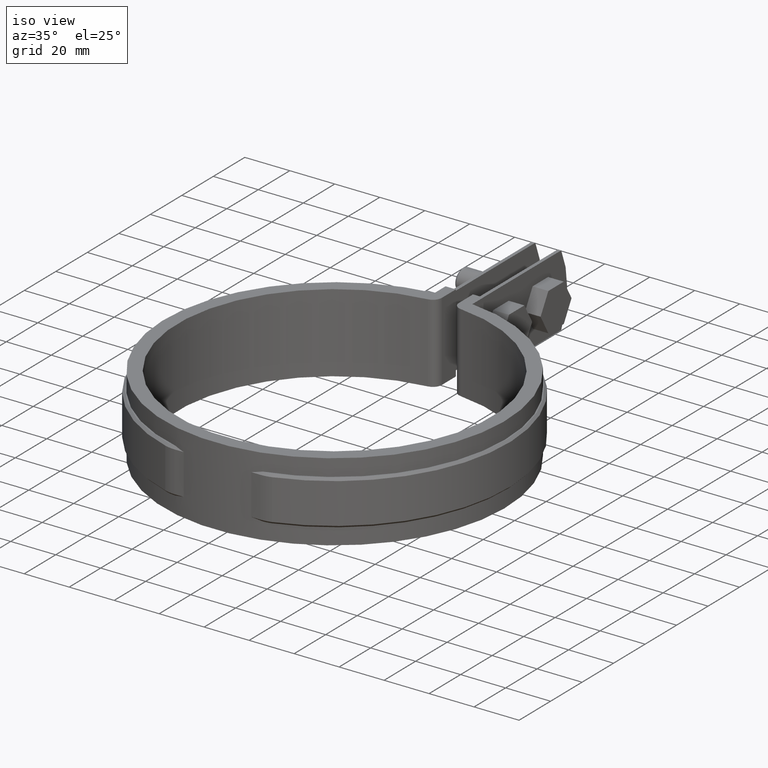
[diagram: clean part render]
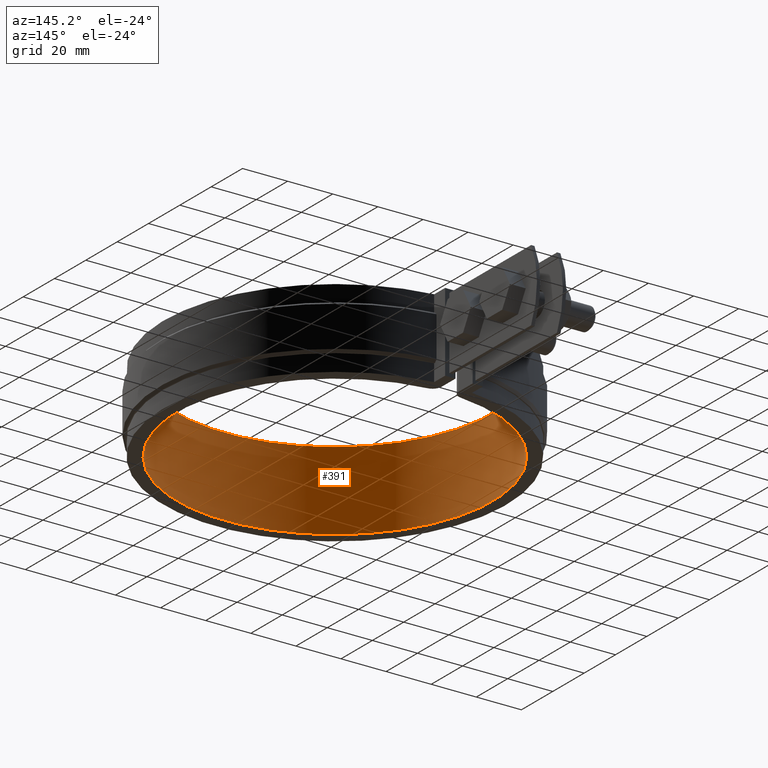
[diagram: tour spotlight — one face highlighted and labeled with its STEP entity id]
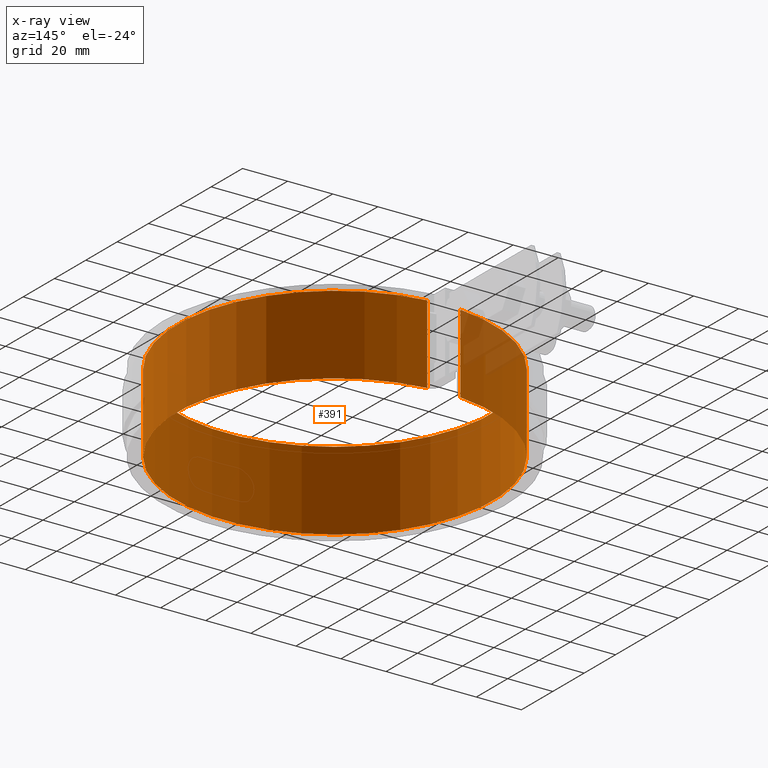
[diagram: x-ray of the same camera — body ghosted, this tour face saturated]
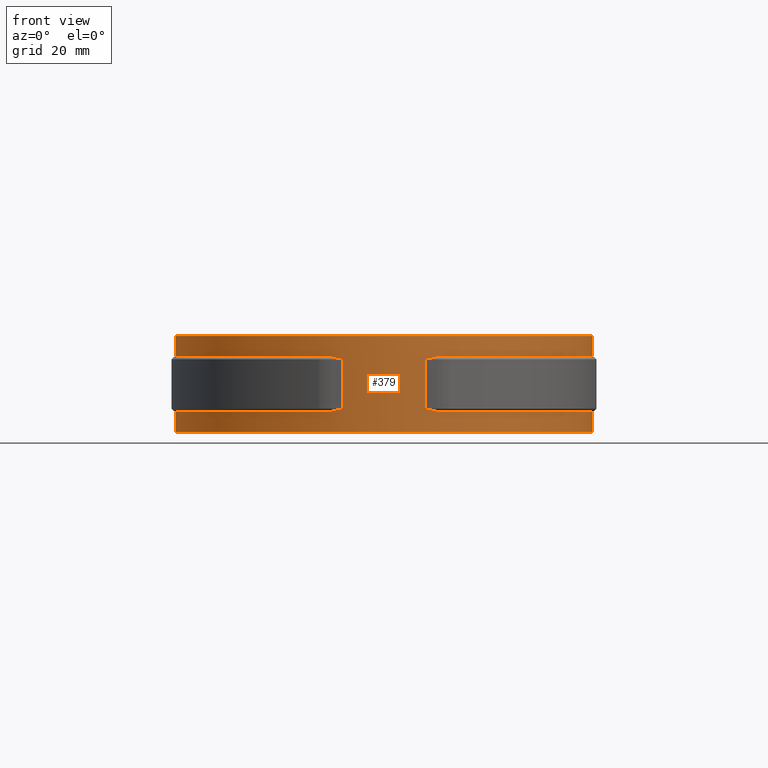
[diagram: tour spotlight — one face highlighted and labeled with its STEP entity id]
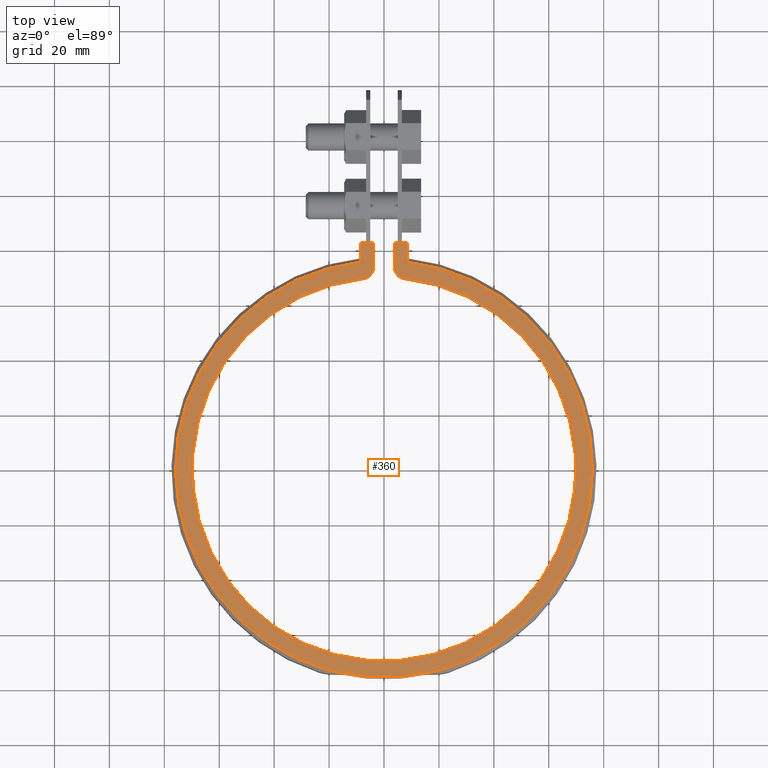
[diagram: tour spotlight — one face highlighted and labeled with its STEP entity id]
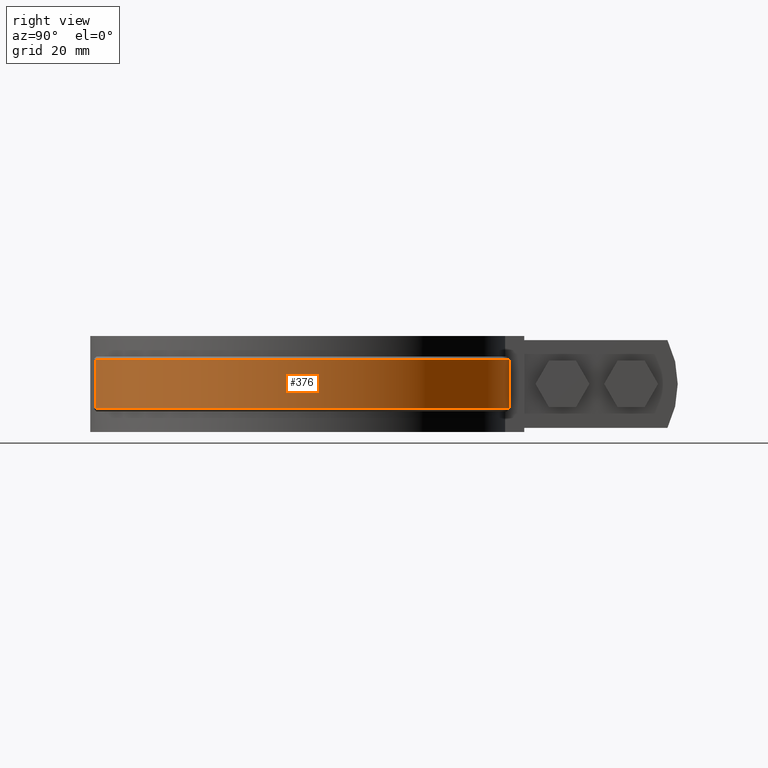
[diagram: tour spotlight — one face highlighted and labeled with its STEP entity id]
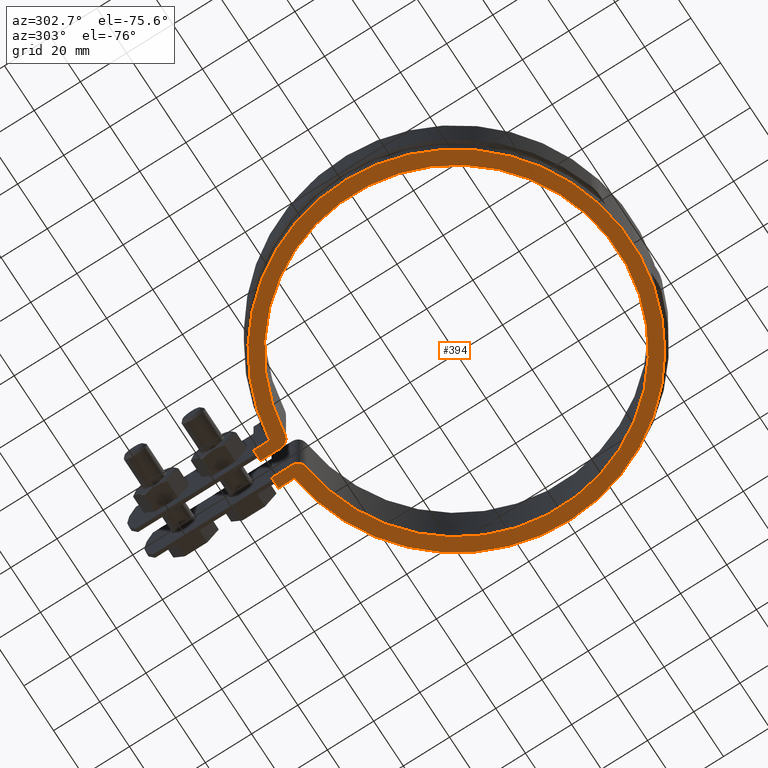
[diagram: tour spotlight — one face highlighted and labeled with its STEP entity id]
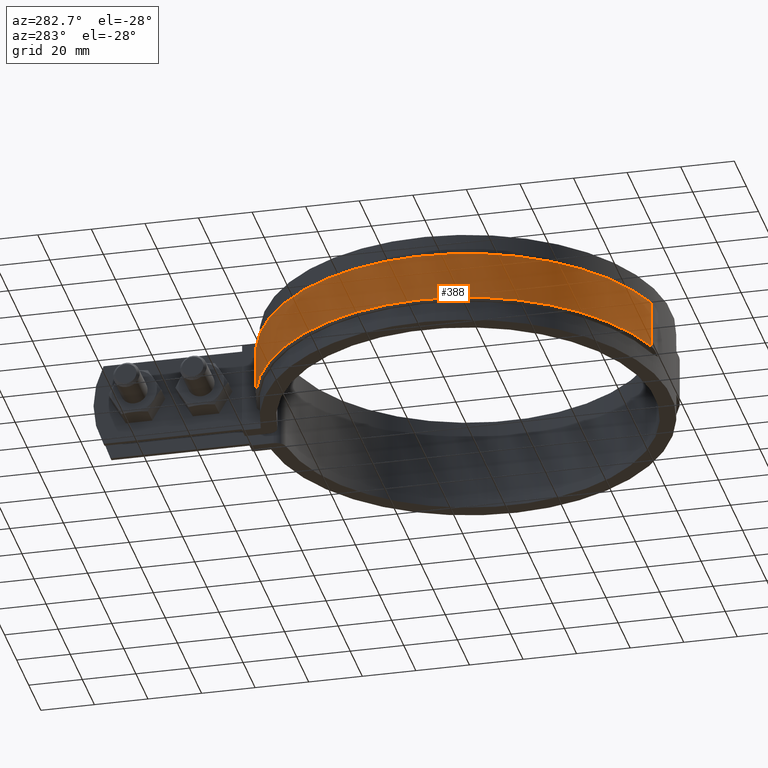
[diagram: tour spotlight — one face highlighted and labeled with its STEP entity id]
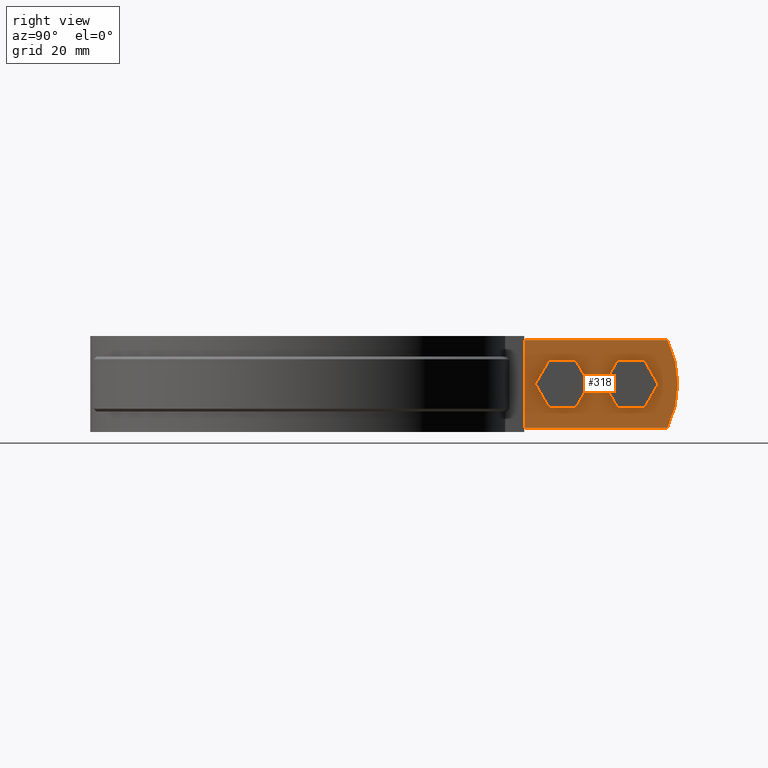
[diagram: tour spotlight — one face highlighted and labeled with its STEP entity id]
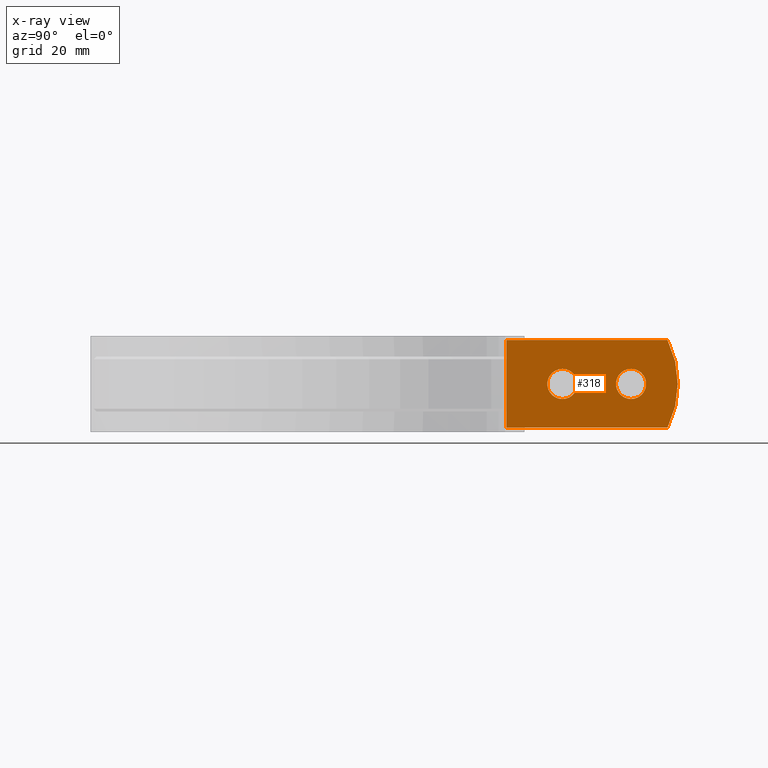
[diagram: x-ray of the same camera — body ghosted, this tour face saturated]
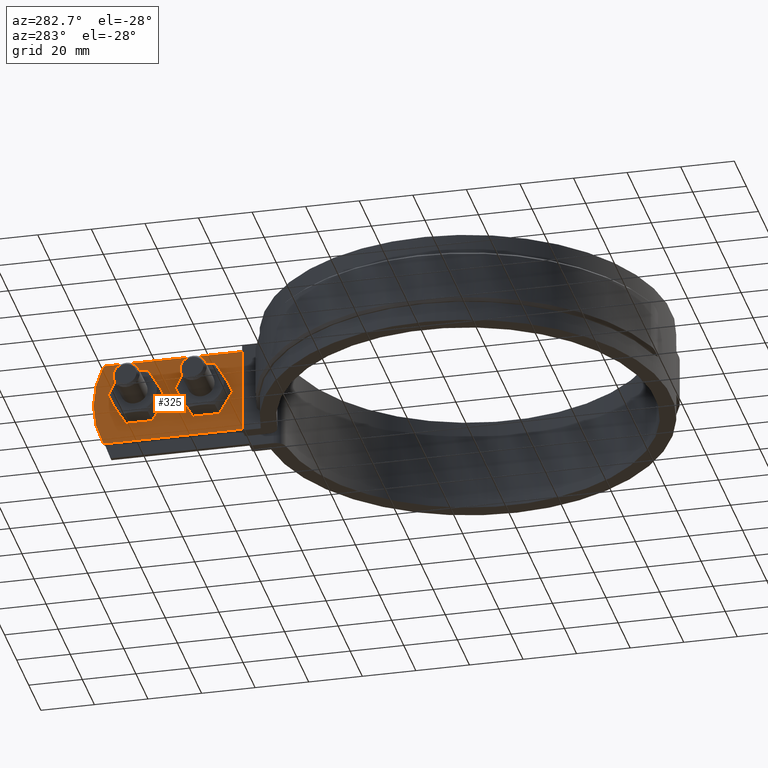
[diagram: tour spotlight — one face highlighted and labeled with its STEP entity id]
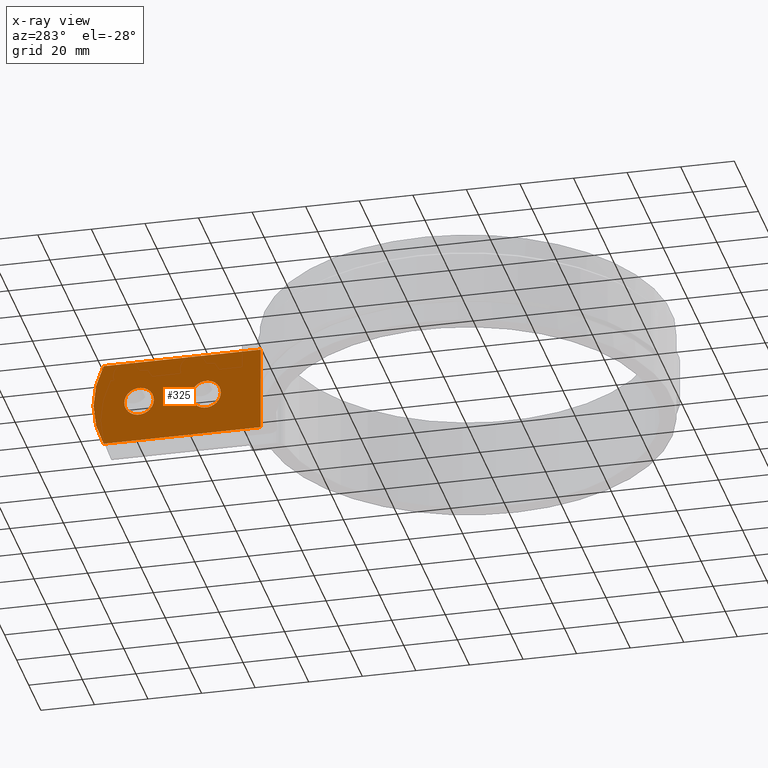
[diagram: x-ray of the same camera — body ghosted, this tour face saturated]
A machine part: a face-by-face anatomy tour. The part has 146 B-rep faces; the first image is the clean iso view, then the 8 largest visible faces are spotlighted one at a time (largest first), each with its STEP entity span.

Face 1 — auxiliary view, entity #391. An x-ray twin of the same camera follows (body ghosted, this face saturated) — the face is partly hidden behind the body. In plain terms, the highlighted cylindrical surface (partial cylindrical patch) has radius 69.9 mm, axis along (0, 0, 1).
Definition (entity closure, byte-faithful):
#391 = ADVANCED_FACE( '', ( #634 ), #635, .F. );
#634 = FACE_OUTER_BOUND( '', #1712, .T. );
#635 = CYLINDRICAL_SURFACE( '', #1713, 69.9000000000000 );
#1712 = EDGE_LOOP( '', ( #4073, #4074, #4075, #4076 ) );
#1713 = AXIS2_PLACEMENT_3D( '', #4077, #4078, #4079 );
#4073 = ORIENTED_EDGE( '', *, *, #4791, .T. );
#4074 = ORIENTED_EDGE( '', *, *, #4805, .F. );
#4075 = ORIENTED_EDGE( '', *, *, #4873, .F. );
#4076 = ORIENTED_EDGE( '', *, *, #4874, .T. );
#4077 = CARTESIAN_POINT( '', ( 1.73472347597681E-015, 2.77555756156289E-014, -32.0000000000000 ) );
#4078 = DIRECTION( '', ( 0.000000000000000, 0.000000000000000, 1.00000000000000 ) );
#4079 = DIRECTION( '', ( -0.105548037889040, -0.994414205297658, 0.000000000000000 ) );
#4791 = EDGE_CURVE( '', #5337, #5335, #5338, .T. );
#4805 = EDGE_CURVE( '', #5361, #5335, #5363, .T. );
#4873 = EDGE_CURVE( '', #5462, #5361, #5463, .T. );
#4874 = EDGE_CURVE( '', #5462, #5337, #5464, .T. );
#5335 = VERTEX_POINT( '', #7864 );
#5337 = VERTEX_POINT( '', #7866 );
#5338 = LINE( '', #7867, #7868 );
#5361 = VERTEX_POINT( '', #7904 );
#5363 = CIRCLE( '', #7906, 69.9000000000000 );
#5462 = VERTEX_POINT( '', #8061 );
#5463 = LINE( '', #8062, #8063 );
#5464 = CIRCLE( '', #8064, 69.9000000000000 );
#7864 = CARTESIAN_POINT( '', ( -7.37780784844384, 69.5095529503063, 1.50000000000000 ) );
#7866 = CARTESIAN_POINT( '', ( -7.37780784844384, 69.5095529503063, -33.5000000000000 ) );
#7867 = CARTESIAN_POINT( '', ( -7.37780784844384, 69.5095529503063, -32.0000000000000 ) );
#7868 = VECTOR( '', #8689, 1000.00000000000 );
#7904 = CARTESIAN_POINT( '', ( 7.37780784844384, 69.5095529503063, 1.50000000000000 ) );
#7906 = AXIS2_PLACEMENT_3D( '', #8706, #8707, #8708 );
#8061 = CARTESIAN_POINT( '', ( 7.37780784844384, 69.5095529503063, -33.5000000000000 ) );
#8062 = CARTESIAN_POINT( '', ( 7.37780784844383, 69.5095529503063, -32.0000000000000 ) );
#8063 = VECTOR( '', #8819, 1000.00000000000 );
#8064 = AXIS2_PLACEMENT_3D( '', #8820, #8821, #8822 );
#8689 = DIRECTION( '', ( 0.000000000000000, 0.000000000000000, 1.00000000000000 ) );
#8706 = CARTESIAN_POINT( '', ( 1.73472347597681E-015, 2.77555756156289E-014, 1.50000000000000 ) );
#8707 = DIRECTION( '', ( 0.000000000000000, 0.000000000000000, -1.00000000000000 ) );
#8708 = DIRECTION( '', ( -1.00000000000000, 0.000000000000000, 0.000000000000000 ) );
#8819 = DIRECTION( '', ( 0.000000000000000, 0.000000000000000, 1.00000000000000 ) );
#8820 = CARTESIAN_POINT( '', ( 1.73472347597681E-015, 2.77555756156289E-014, -33.5000000000000 ) );
#8821 = DIRECTION( '', ( 0.000000000000000, 0.000000000000000, -1.00000000000000 ) );
#8822 = DIRECTION( '', ( -1.00000000000000, 0.000000000000000, 0.000000000000000 ) );

Face 2 — front view, entity #379. In plain terms, the highlighted cylindrical surface (partial cylindrical patch) has radius 75.9 mm, axis along (0, 0, 1).
Definition (entity closure, byte-faithful):
#379 = ADVANCED_FACE( '', ( #609 ), #610, .T. );
#609 = FACE_OUTER_BOUND( '', #1687, .T. );
#610 = CYLINDRICAL_SURFACE( '', #1688, 75.9000000000000 );
#1687 = EDGE_LOOP( '', ( #3955, #3956, #3957, #3958, #3959, #3960, #3961, #3962, #3963, #3964, #3965, #3966, #3967, #3968, #3969, #3970, #3971, #3972, #3973, #3974 ) );
#1688 = AXIS2_PLACEMENT_3D( '', #3975, #3976, #3977 );
#3955 = ORIENTED_EDGE( '', *, *, #4851, .T. );
#3956 = ORIENTED_EDGE( '', *, *, #4751, .T. );
#3957 = ORIENTED_EDGE( '', *, *, #4834, .T. );
#3958 = ORIENTED_EDGE( '', *, *, #4852, .F. );
#3959 = ORIENTED_EDGE( '', *, *, #4853, .T. );
#3960 = ORIENTED_EDGE( '', *, *, #4826, .T. );
#3961 = ORIENTED_EDGE( '', *, *, #4854, .F. );
#3962 = ORIENTED_EDGE( '', *, *, #4855, .F. );
#3963 = ORIENTED_EDGE( '', *, *, #4856, .F. );
#3964 = ORIENTED_EDGE( '', *, *, #4795, .T. );
#3965 = ORIENTED_EDGE( '', *, *, #4847, .T. );
#3966 = ORIENTED_EDGE( '', *, *, #4837, .T. );
#3967 = ORIENTED_EDGE( '', *, *, #4812, .T. );
#3968 = ORIENTED_EDGE( '', *, *, #4820, .T. );
#3969 = ORIENTED_EDGE( '', *, *, #4835, .T. );
#3970 = ORIENTED_EDGE( '', *, *, #4815, .T. );
#3971 = ORIENTED_EDGE( '', *, *, #4857, .F. );
#3972 = ORIENTED_EDGE( '', *, *, #4799, .T. );
#3973 = ORIENTED_EDGE( '', *, *, #4807, .T. );
#3974 = ORIENTED_EDGE( '', *, *, #4858, .F. );
#3975 = CARTESIAN_POINT( '', ( -3.46944695195361E-015, -1.38777878078145E-014, -33.5000000000000 ) );
#3976 = DIRECTION( '', ( 0.000000000000000, 0.000000000000000, 1.00000000000000 ) );
#3977 = DIRECTION( '', ( -0.110671936758893, -0.993856992939143, 0.000000000000000 ) );
#4751 = EDGE_CURVE( '', #5264, #5262, #5265, .F. );
#4795 = EDGE_CURVE( '', #5344, #5342, #5345, .F. );
#4799 = EDGE_CURVE( '', #5352, #5350, #5353, .F. );
#4807 = EDGE_CURVE( '', #5350, #5364, #5366, .T. );
#4812 = EDGE_CURVE( '', #5375, #5372, #5376, .T. );
#4815 = EDGE_CURVE( '', #5380, #5378, #5381, .F. );
#4820 = EDGE_CURVE( '', #5372, #5386, #5388, .F. );
#4826 = EDGE_CURVE( '', #5398, #5395, #5399, .F. );
#4834 = EDGE_CURVE( '', #5262, #5410, #5412, .F. );
#4835 = EDGE_CURVE( '', #5386, #5380, #5413, .F. );
#4837 = EDGE_CURVE( '', #5415, #5375, #5416, .F. );
#4847 = EDGE_CURVE( '', #5342, #5415, #5427, .F. );
#4851 = EDGE_CURVE( '', #5433, #5264, #5434, .F. );
#4852 = EDGE_CURVE( '', #5435, #5410, #5436, .F. );
#4853 = EDGE_CURVE( '', #5435, #5398, #5437, .T. );
#4854 = EDGE_CURVE( '', #5438, #5395, #5439, .F. );
#4855 = EDGE_CURVE( '', #5440, #5438, #5441, .F. );
#4856 = EDGE_CURVE( '', #5344, #5440, #5442, .T. );
#4857 = EDGE_CURVE( '', #5352, #5378, #5443, .F. );
#4858 = EDGE_CURVE( '', #5433, #5364, #5444, .F. );
#5262 = VERTEX_POINT( '', #7340 );
#5264 = VERTEX_POINT( '', #7343 );
#5265 = B_SPLINE_CURVE_WITH_KNOTS( '', 3, ( #7344, #7345, #7346, #7347, #7348 ), .UNSPECIFIED., .F., .F., ( 4, 1, 4 ), ( 0.455701035524882, 0.455810429906675, 0.455919824288469 ), .UNSPECIFIED. );
#5342 = VERTEX_POINT( '', #7873 );
#5344 = VERTEX_POINT( '', #7876 );
#5345 = LINE( '', #7877, #7878 );
#5350 = VERTEX_POINT( '', #7885 );
#5352 = VERTEX_POINT( '', #7888 );
#5353 = LINE( '', #7889, #7890 );
#5364 = VERTEX_POINT( '', #7907 );
#5366 = CIRCLE( '', #7910, 75.9000000000000 );
#5372 = VERTEX_POINT( '', #7917 );
#5375 = VERTEX_POINT( '', #7921 );
#5376 = ELLIPSE( '', #7922, 107.338809384118, 75.9000000000000 );
#5378 = VERTEX_POINT( '', #7925 );
#5380 = VERTEX_POINT( '', #7927 );
#5381 = B_SPLINE_CURVE_WITH_KNOTS( '', 3, ( #7928, #7929, #7930, #7931, #7932 ), .UNSPECIFIED., .F., .F., ( 4, 1, 4 ), ( 0.372261272797377, 0.372370381165366, 0.372479489533356 ), .UNSPECIFIED. );
#5386 = VERTEX_POINT( '', #7939 );
#5388 = LINE( '', #7942, #7943 );
#5395 = VERTEX_POINT( '', #7953 );
#5398 = VERTEX_POINT( '', #7956 );
#5399 = B_SPLINE_CURVE_WITH_KNOTS( '', 3, ( #7957, #7958, #7959, #7960, #7961 ), .UNSPECIFIED., .F., .F., ( 4, 1, 4 ), ( 0.0132547558525077, 0.0133655244424742, 0.0134762930324408 ), .UNSPECIFIED. );
#5410 = VERTEX_POINT( '', #7977 );
#5412 = ELLIPSE( '', #7980, 107.338809384118, 75.9000000000000 );
#5413 = ELLIPSE( '', #7981, 107.338809384118, 75.9000000000000 );
#5415 = VERTEX_POINT( '', #7983 );
#5416 = B_SPLINE_CURVE_WITH_KNOTS( '', 3, ( #7984, #7985, #7986, #7987, #7988 ), .UNSPECIFIED., .F., .F., ( 4, 1, 4 ), ( 0.0454399869634684, 0.0455510886955149, 0.0456621904275614 ), .UNSPECIFIED. );
#5427 = CIRCLE( '', #8006, 75.9000000000000 );
#5433 = VERTEX_POINT( '', #8015 );
#5434 = CIRCLE( '', #8016, 75.9000000000000 );
#5435 = VERTEX_POINT( '', #8017 );
#5436 = LINE( '', #8018, #8019 );
#5437 = ELLIPSE( '', #8020, 107.338809384118, 75.9000000000000 );
#5438 = VERTEX_POINT( '', #8021 );
#5439 = CIRCLE( '', #8022, 75.9000000000000 );
#5440 = VERTEX_POINT( '', #8023 );
#5441 = LINE( '', #8024, #8025 );
#5442 = CIRCLE( '', #8026, 75.9000000000000 );
#5443 = CIRCLE( '', #8027, 75.9000000000000 );
#5444 = LINE( '', #8028, #8029 );
#7340 = CARTESIAN_POINT( '', ( -19.1154387864888, -73.4534546498666, -6.05345464986658 ) );
#7343 = CARTESIAN_POINT( '', ( -19.3256757353932, -73.3984213547570, -6.00000000000000 ) );
#7344 = CARTESIAN_POINT( '', ( -19.1154387864888, -73.4534546498666, -6.05345464986658 ) );
#7345 = CARTESIAN_POINT( '', ( -19.1504515202996, -73.4443429780862, -6.04434297808615 ) );
#7346 = CARTESIAN_POINT( '', ( -19.2205035300521, -73.4260592685458, -6.02632096014669 ) );
#7347 = CARTESIAN_POINT( '', ( -19.2906092708887, -73.4076542934182, -6.00870530708689 ) );
#7348 = CARTESIAN_POINT( '', ( -19.3256757353932, -73.3984213547569, -5.99999999999999 ) );
#7873 = CARTESIAN_POINT( '', ( 8.39999999999999, 75.4337457640810, -26.0000000000000 ) );
#7876 = CARTESIAN_POINT( '', ( 8.39999999999999, 75.4337457640810, -33.5000000000000 ) );
#7877 = CARTESIAN_POINT( '', ( 8.39999999999999, 75.4337457640810, -33.5000000000000 ) );
#7878 = VECTOR( '', #8695, 1000.00000000000 );
#7885 = CARTESIAN_POINT( '', ( 8.39999999999999, 75.4337457640810, 1.50000000000000 ) );
#7888 = CARTESIAN_POINT( '', ( 8.39999999999999, 75.4337457640809, -6.00000000000000 ) );
#7889 = CARTESIAN_POINT( '', ( 8.39999999999999, 75.4337457640810, -33.5000000000000 ) );
#7890 = VECTOR( '', #8699, 1000.00000000000 );
#7907 = CARTESIAN_POINT( '', ( -8.40000000000000, 75.4337457640810, 1.50000000000000 ) );
#7910 = AXIS2_PLACEMENT_3D( '', #8710, #8711, #8712 );
#7917 = CARTESIAN_POINT( '', ( 15.0149925074908, -74.4000000000000, -25.0000000000000 ) );
#7921 = CARTESIAN_POINT( '', ( 19.1154387864890, -73.4534546498665, -25.9465453501335 ) );
#7922 = AXIS2_PLACEMENT_3D( '', #8721, #8722, #8723 );
#7925 = CARTESIAN_POINT( '', ( 19.3256757353932, -73.3984213547569, -6.00000000000000 ) );
#7927 = CARTESIAN_POINT( '', ( 19.1154387864888, -73.4534546498666, -6.05345464986657 ) );
#7928 = CARTESIAN_POINT( '', ( 19.3256757353932, -73.3984213547570, -6.00000000000001 ) );
#7929 = CARTESIAN_POINT( '', ( 19.2905683529937, -73.4076650670282, -6.00871546502114 ) );
#7930 = CARTESIAN_POINT( '', ( 19.2204220915048, -73.4260805860632, -6.02634166973986 ) );
#7931 = CARTESIAN_POINT( '', ( 19.1504109974073, -73.4443535237150, -6.04435352371492 ) );
#7932 = CARTESIAN_POINT( '', ( 19.1154387864888, -73.4534546498666, -6.05345464986656 ) );
#7939 = CARTESIAN_POINT( '', ( 15.0149925074908, -74.4000000000000, -7.00000000000000 ) );
#7942 = CARTESIAN_POINT( '', ( 15.0149925074908, -74.4000000000000, -33.5000000000000 ) );
#7943 = VECTOR( '', #8734, 1000.00000000000 );
#7953 = CARTESIAN_POINT( '', ( -19.3256757353932, -73.3984213547570, -26.0000000000000 ) );
#7956 = CARTESIAN_POINT( '', ( -19.1154387864888, -73.4534546498666, -25.9465453501335 ) );
#7957 = CARTESIAN_POINT( '', ( -19.3256757353931, -73.3984213547569, -26.0000000000000 ) );
#7958 = CARTESIAN_POINT( '', ( -19.2905723610385, -73.4076640117171, -25.9912855299825 ) );
#7959 = CARTESIAN_POINT( '', ( -19.2204300603776, -73.4260785001260, -25.9736603567624 ) );
#7960 = CARTESIAN_POINT( '', ( -19.1504149585918, -73.4443524928611, -25.9556475071389 ) );
#7961 = CARTESIAN_POINT( '', ( -19.1154387864888, -73.4534546498666, -25.9465453501334 ) );
#7977 = CARTESIAN_POINT( '', ( -15.0149925074908, -74.4000000000000, -7.00000000000000 ) );
#7980 = AXIS2_PLACEMENT_3D( '', #8756, #8757, #8758 );
#7981 = AXIS2_PLACEMENT_3D( '', #8759, #8760, #8761 );
#7983 = CARTESIAN_POINT( '', ( 19.3256757353932, -73.3984213547569, -26.0000000000000 ) );
#7984 = CARTESIAN_POINT( '', ( 19.1154387864889, -73.4534546498665, -25.9465453501335 ) );
#7985 = CARTESIAN_POINT( '', ( 19.1504277195343, -73.4443491719687, -25.9556508280313 ) );
#7986 = CARTESIAN_POINT( '', ( 19.2204557201297, -73.4260717833952, -25.9736668820505 ) );
#7987 = CARTESIAN_POINT( '', ( 19.2905852607834, -73.4076606152369, -25.9912887323653 ) );
#7988 = CARTESIAN_POINT( '', ( 19.3256757353932, -73.3984213547569, -26.0000000000000 ) );
#8006 = AXIS2_PLACEMENT_3D( '', #8778, #8779, #8780 );
#8015 = CARTESIAN_POINT( '', ( -8.40000000000000, 75.4337457640810, -6.00000000000000 ) );
#8016 = AXIS2_PLACEMENT_3D( '', #8784, #8785, #8786 );
#8017 = CARTESIAN_POINT( '', ( -15.0149925074908, -74.4000000000000, -25.0000000000000 ) );
#8018 = CARTESIAN_POINT( '', ( -15.0149925074908, -74.4000000000000, -33.5000000000000 ) );
#8019 = VECTOR( '', #8787, 1000.00000000000 );
#8020 = AXIS2_PLACEMENT_3D( '', #8788, #8789, #8790 );
#8021 = CARTESIAN_POINT( '', ( -8.40000000000000, 75.4337457640809, -26.0000000000000 ) );
#8022 = AXIS2_PLACEMENT_3D( '', #8791, #8792, #8793 );
#8023 = CARTESIAN_POINT( '', ( -8.40000000000000, 75.4337457640810, -33.5000000000000 ) );
#8024 = CARTESIAN_POINT( '', ( -8.40000000000000, 75.4337457640810, -33.5000000000000 ) );
#8025 = VECTOR( '', #8794, 1000.00000000000 );
#8026 = AXIS2_PLACEMENT_3D( '', #8795, #8796, #8797 );
#8027 = AXIS2_PLACEMENT_3D( '', #8798, #8799, #8800 );
#8028 = CARTESIAN_POINT( '', ( -8.40000000000000, 75.4337457640810, -33.5000000000000 ) );
#8029 = VECTOR( '', #8801, 1000.00000000000 );
#8695 = DIRECTION( '', ( 0.000000000000000, 0.000000000000000, -1.00000000000000 ) );
#8699 = DIRECTION( '', ( 0.000000000000000, 0.000000000000000, -1.00000000000000 ) );
#8710 = CARTESIAN_POINT( '', ( -3.46944695195361E-015, -1.38777878078145E-014, 1.50000000000000 ) );
#8711 = DIRECTION( '', ( 0.000000000000000, 0.000000000000000, -1.00000000000000 ) );
#8712 = DIRECTION( '', ( -1.00000000000000, 0.000000000000000, 0.000000000000000 ) );
#8721 = CARTESIAN_POINT( '', ( -3.46944695195361E-015, -1.38777878078145E-014, -99.3999999999997 ) );
#8722 = DIRECTION( '', ( 3.92523114670943E-017, -0.707106781186546, -0.707106781186549 ) );
#8723 = DIRECTION( '', ( -3.92523114670945E-017, 0.707106781186549, -0.707106781186546 ) );
#8734 = DIRECTION( '', ( 0.000000000000000, 0.000000000000000, -1.00000000000000 ) );
#8756 = CARTESIAN_POINT( '', ( -3.46944695195361E-015, -1.38777878078145E-014, 67.3999999999999 ) );
#8757 = DIRECTION( '', ( 0.000000000000000, 0.707106781186547, -0.707106781186548 ) );
#8758 = DIRECTION( '', ( 0.000000000000000, -0.707106781186548, -0.707106781186547 ) );
#8759 = CARTESIAN_POINT( '', ( -3.46944695195361E-015, -1.38777878078145E-014, 67.3999999999999 ) );
#8760 = DIRECTION( '', ( -3.92523114670943E-017, 0.707106781186547, -0.707106781186548 ) );
#8761 = DIRECTION( '', ( 3.92523114670944E-017, -0.707106781186548, -0.707106781186547 ) );
#8778 = CARTESIAN_POINT( '', ( -3.46944695195361E-015, -1.38777878078145E-014, -26.0000000000000 ) );
#8779 = DIRECTION( '', ( 0.000000000000000, 0.000000000000000, 1.00000000000000 ) );
#8780 = DIRECTION( '', ( 1.00000000000000, 0.000000000000000, 0.000000000000000 ) );
#8784 = CARTESIAN_POINT( '', ( -3.46944695195361E-015, -1.38777878078145E-014, -6.00000000000000 ) );
#8785 = DIRECTION( '', ( 0.000000000000000, 0.000000000000000, -1.00000000000000 ) );
#8786 = DIRECTION( '', ( -1.00000000000000, 0.000000000000000, 0.000000000000000 ) );
#8787 = DIRECTION( '', ( 0.000000000000000, 0.000000000000000, -1.00000000000000 ) );
#8788 = CARTESIAN_POINT( '', ( -3.46944695195361E-015, -1.38777878078145E-014, -99.4000000000000 ) );
#8789 = DIRECTION( '', ( 0.000000000000000, -0.707106781186548, -0.707106781186548 ) );
#8790 = DIRECTION( '', ( 0.000000000000000, 0.707106781186548, -0.707106781186548 ) );
#8791 = CARTESIAN_POINT( '', ( -3.46944695195361E-015, -1.38777878078145E-014, -26.0000000000000 ) );
#8792 = DIRECTION( '', ( 0.000000000000000, 0.000000000000000, -1.00000000000000 ) );
#8793 = DIRECTION( '', ( -1.00000000000000, 0.000000000000000, 0.000000000000000 ) );
#8794 = DIRECTION( '', ( 0.000000000000000, 0.000000000000000, -1.00000000000000 ) );
#8795 = CARTESIAN_POINT( '', ( -3.46944695195361E-015, -1.38777878078145E-014, -33.5000000000000 ) );
#8796 = DIRECTION( '', ( 0.000000000000000, 0.000000000000000, -1.00000000000000 ) );
#8797 = DIRECTION( '', ( -1.00000000000000, 0.000000000000000, 0.000000000000000 ) );
#8798 = CARTESIAN_POINT( '', ( -3.46944695195361E-015, -1.38777878078145E-014, -6.00000000000000 ) );
#8799 = DIRECTION( '', ( 0.000000000000000, 0.000000000000000, 1.00000000000000 ) );
#8800 = DIRECTION( '', ( 1.00000000000000, 0.000000000000000, 0.000000000000000 ) );
#8801 = DIRECTION( '', ( 0.000000000000000, 0.000000000000000, -1.00000000000000 ) );

Face 3 — top view, entity #360. In plain terms, the highlighted planar face has unit normal (0, 0, -1).
Definition (entity closure, byte-faithful):
#360 = ADVANCED_FACE( '', ( #571 ), #572, .F. );
#571 = FACE_OUTER_BOUND( '', #1649, .T. );
#572 = PLANE( '', #1650 );
#1649 = EDGE_LOOP( '', ( #3436, #3437, #3438, #3439, #3440, #3441, #3442, #3443, #3444, #3445 ) );
#1650 = AXIS2_PLACEMENT_3D( '', #3446, #3447, #3448 );
#3436 = ORIENTED_EDGE( '', *, *, #4802, .F. );
#3437 = ORIENTED_EDGE( '', *, *, #4803, .T. );
#3438 = ORIENTED_EDGE( '', *, *, #4804, .T. );
#3439 = ORIENTED_EDGE( '', *, *, #4805, .T. );
#3440 = ORIENTED_EDGE( '', *, *, #4790, .T. );
#3441 = ORIENTED_EDGE( '', *, *, #4787, .T. );
#3442 = ORIENTED_EDGE( '', *, *, #4706, .F. );
#3443 = ORIENTED_EDGE( '', *, *, #4806, .F. );
#3444 = ORIENTED_EDGE( '', *, *, #4807, .F. );
#3445 = ORIENTED_EDGE( '', *, *, #4798, .F. );
#3446 = CARTESIAN_POINT( '', ( -3.46944695195361E-015, -1.38777878078145E-014, 1.50000000000000 ) );
#3447 = DIRECTION( '', ( 0.000000000000000, 0.000000000000000, -1.00000000000000 ) );
#3448 = DIRECTION( '', ( 0.000000000000000, -1.00000000000000, 0.000000000000000 ) );
#4706 = EDGE_CURVE( '', #5180, #5181, #5182, .T. );
#4787 = EDGE_CURVE( '', #5330, #5181, #5331, .F. );
#4790 = EDGE_CURVE( '', #5335, #5330, #5336, .F. );
#4798 = EDGE_CURVE( '', #5348, #5350, #5351, .T. );
#4802 = EDGE_CURVE( '', #5357, #5348, #5358, .T. );
#4803 = EDGE_CURVE( '', #5357, #5359, #5360, .F. );
#4804 = EDGE_CURVE( '', #5359, #5361, #5362, .F. );
#4805 = EDGE_CURVE( '', #5361, #5335, #5363, .T. );
#4806 = EDGE_CURVE( '', #5364, #5180, #5365, .T. );
#4807 = EDGE_CURVE( '', #5350, #5364, #5366, .T. );
#5180 = VERTEX_POINT( '', #6784 );
#5181 = VERTEX_POINT( '', #6785 );
#5182 = LINE( '', #6786, #6787 );
#5330 = VERTEX_POINT( '', #7856 );
#5331 = LINE( '', #7857, #7858 );
#5335 = VERTEX_POINT( '', #7864 );
#5336 = CIRCLE( '', #7865, 4.00000000000000 );
#5348 = VERTEX_POINT( '', #7882 );
#5350 = VERTEX_POINT( '', #7885 );
#5351 = LINE( '', #7886, #7887 );
#5357 = VERTEX_POINT( '', #7898 );
#5358 = LINE( '', #7899, #7900 );
#5359 = VERTEX_POINT( '', #7901 );
#5360 = LINE( '', #7902, #7903 );
#5361 = VERTEX_POINT( '', #7904 );
#5362 = CIRCLE( '', #7905, 4.00000000000000 );
#5363 = CIRCLE( '', #7906, 69.9000000000000 );
#5364 = VERTEX_POINT( '', #7907 );
#5365 = LINE( '', #7908, #7909 );
#5366 = CIRCLE( '', #7910, 75.9000000000000 );
#6784 = CARTESIAN_POINT( '', ( -8.40000000000000, 82.4000000000000, 1.50000000000000 ) );
#6785 = CARTESIAN_POINT( '', ( -3.80000000000000, 82.4000000000000, 1.50000000000000 ) );
#6786 = CARTESIAN_POINT( '', ( -8.40000000000001, 82.4000000000000, 1.50000000000000 ) );
#6787 = VECTOR( '', #8608, 1000.00000000000 );
#7856 = CARTESIAN_POINT( '', ( -3.80000000000000, 73.4872097714970, 1.50000000000000 ) );
#7857 = CARTESIAN_POINT( '', ( -3.80000000000000, -1.37195810268054E-014, 1.50000000000000 ) );
#7858 = VECTOR( '', #8683, 1000.00000000000 );
#7864 = CARTESIAN_POINT( '', ( -7.37780784844384, 69.5095529503063, 1.50000000000000 ) );
#7865 = AXIS2_PLACEMENT_3D( '', #8686, #8687, #8688 );
#7882 = CARTESIAN_POINT( '', ( 8.39999999999999, 82.4000000000000, 1.50000000000000 ) );
#7885 = CARTESIAN_POINT( '', ( 8.39999999999999, 75.4337457640810, 1.50000000000000 ) );
#7886 = CARTESIAN_POINT( '', ( 8.39999999999999, 82.4000000000000, 1.50000000000000 ) );
#7887 = VECTOR( '', #8698, 1000.00000000000 );
#7898 = CARTESIAN_POINT( '', ( 3.80000000000000, 82.4000000000000, 1.50000000000000 ) );
#7899 = CARTESIAN_POINT( '', ( 6.20000000000000, 82.4000000000000, 1.50000000000000 ) );
#7900 = VECTOR( '', #8701, 1000.00000000000 );
#7901 = CARTESIAN_POINT( '', ( 3.80000000000000, 73.4872097714970, 1.50000000000000 ) );
#7902 = CARTESIAN_POINT( '', ( 3.80000000000000, -1.40359945888236E-014, 1.50000000000000 ) );
#7903 = VECTOR( '', #8702, 1000.00000000000 );
#7904 = CARTESIAN_POINT( '', ( 7.37780784844384, 69.5095529503063, 1.50000000000000 ) );
#7905 = AXIS2_PLACEMENT_3D( '', #8703, #8704, #8705 );
#7906 = AXIS2_PLACEMENT_3D( '', #8706, #8707, #8708 );
#7907 = CARTESIAN_POINT( '', ( -8.40000000000000, 75.4337457640810, 1.50000000000000 ) );
#7908 = CARTESIAN_POINT( '', ( -8.40000000000000, 75.4337457640810, 1.50000000000000 ) );
#7909 = VECTOR( '', #8709, 1000.00000000000 );
#7910 = AXIS2_PLACEMENT_3D( '', #8710, #8711, #8712 );
#8608 = DIRECTION( '', ( 1.00000000000000, -1.38777878078145E-017, 0.000000000000000 ) );
#8683 = DIRECTION( '', ( -4.16333634234434E-017, -1.00000000000000, 0.000000000000000 ) );
#8686 = CARTESIAN_POINT( '', ( -7.79999999999999, 73.4872097714970, 1.50000000000000 ) );
#8687 = DIRECTION( '', ( 0.000000000000000, 0.000000000000000, -1.00000000000000 ) );
#8688 = DIRECTION( '', ( -1.00000000000000, 0.000000000000000, 0.000000000000000 ) );
#8698 = DIRECTION( '', ( -5.55111512312578E-017, -1.00000000000000, 0.000000000000000 ) );
#8701 = DIRECTION( '', ( 1.00000000000000, -1.38777878078145E-017, 0.000000000000000 ) );
#8702 = DIRECTION( '', ( 4.16333634234434E-017, 1.00000000000000, 0.000000000000000 ) );
#8703 = CARTESIAN_POINT( '', ( 7.80000000000000, 73.4872097714970, 1.50000000000000 ) );
#8704 = DIRECTION( '', ( 0.000000000000000, 0.000000000000000, -1.00000000000000 ) );
#8705 = DIRECTION( '', ( -1.00000000000000, 0.000000000000000, 0.000000000000000 ) );
#8706 = CARTESIAN_POINT( '', ( 1.73472347597681E-015, 2.77555756156289E-014, 1.50000000000000 ) );
#8707 = DIRECTION( '', ( 0.000000000000000, 0.000000000000000, -1.00000000000000 ) );
#8708 = DIRECTION( '', ( -1.00000000000000, 0.000000000000000, 0.000000000000000 ) );
#8709 = DIRECTION( '', ( 5.55111512312578E-017, 1.00000000000000, 0.000000000000000 ) );
#8710 = CARTESIAN_POINT( '', ( -3.46944695195361E-015, -1.38777878078145E-014, 1.50000000000000 ) );
#8711 = DIRECTION( '', ( 0.000000000000000, 0.000000000000000, -1.00000000000000 ) );
#8712 = DIRECTION( '', ( -1.00000000000000, 0.000000000000000, 0.000000000000000 ) );

Face 4 — right view, entity #376. In plain terms, the highlighted cylindrical surface (partial cylindrical patch) has radius 77.4 mm, axis along (0, 0, 1).
Definition (entity closure, byte-faithful):
#376 = ADVANCED_FACE( '', ( #603 ), #604, .T. );
#603 = FACE_OUTER_BOUND( '', #1681, .T. );
#604 = CYLINDRICAL_SURFACE( '', #1682, 77.4000000000000 );
#1681 = EDGE_LOOP( '', ( #3934, #3935, #3936, #3937 ) );
#1682 = AXIS2_PLACEMENT_3D( '', #3938, #3939, #3940 );
#3934 = ORIENTED_EDGE( '', *, *, #4793, .T. );
#3935 = ORIENTED_EDGE( '', *, *, #4810, .T. );
#3936 = ORIENTED_EDGE( '', *, *, #4846, .F. );
#3937 = ORIENTED_EDGE( '', *, *, #4754, .T. );
#3938 = CARTESIAN_POINT( '', ( 6.93889390390723E-015, -2.77555756156289E-014, -26.0000000000000 ) );
#3939 = DIRECTION( '', ( 0.000000000000000, 0.000000000000000, 1.00000000000000 ) );
#3940 = DIRECTION( '', ( 0.306337160039884, -0.951923076923077, 0.000000000000000 ) );
#4754 = EDGE_CURVE( '', #5270, #5267, #5271, .T. );
#4793 = EDGE_CURVE( '', #5267, #5340, #5341, .F. );
#4810 = EDGE_CURVE( '', #5340, #5369, #5371, .T. );
#4846 = EDGE_CURVE( '', #5270, #5369, #5426, .T. );
#5267 = VERTEX_POINT( '', #7350 );
#5270 = VERTEX_POINT( '', #7356 );
#5271 = CIRCLE( '', #7357, 77.4000000000000 );
#5340 = VERTEX_POINT( '', #7870 );
#5341 = LINE( '', #7871, #7872 );
#5369 = VERTEX_POINT( '', #7913 );
#5371 = CIRCLE( '', #7916, 77.4000000000000 );
#5426 = LINE( '', #8004, #8005 );
#7350 = CARTESIAN_POINT( '', ( 8.39999999999999, 76.9428359238207, -25.0000000000000 ) );
#7356 = CARTESIAN_POINT( '', ( 23.7104961870871, -73.6788461538462, -25.0000000000000 ) );
#7357 = AXIS2_PLACEMENT_3D( '', #8657, #8658, #8659 );
#7870 = CARTESIAN_POINT( '', ( 8.39999999999999, 76.9428359238207, -6.99999999999998 ) );
#7871 = CARTESIAN_POINT( '', ( 8.39999999999999, 76.9428359238207, -26.0000000000000 ) );
#7872 = VECTOR( '', #8693, 1000.00000000000 );
#7913 = CARTESIAN_POINT( '', ( 23.7104961870871, -73.6788461538462, -7.00000000000000 ) );
#7916 = AXIS2_PLACEMENT_3D( '', #8717, #8718, #8719 );
#8004 = CARTESIAN_POINT( '', ( 23.7104961870871, -73.6788461538462, -26.0000000000000 ) );
#8005 = VECTOR( '', #8777, 1000.00000000000 );
#8657 = CARTESIAN_POINT( '', ( 6.93889390390723E-015, -2.77555756156289E-014, -25.0000000000000 ) );
#8658 = DIRECTION( '', ( 0.000000000000000, 0.000000000000000, 1.00000000000000 ) );
#8659 = DIRECTION( '', ( 1.00000000000000, 0.000000000000000, 0.000000000000000 ) );
#8693 = DIRECTION( '', ( 0.000000000000000, 0.000000000000000, -1.00000000000000 ) );
#8717 = CARTESIAN_POINT( '', ( 6.93889390390723E-015, -2.77555756156289E-014, -6.99999999999998 ) );
#8718 = DIRECTION( '', ( 0.000000000000000, 0.000000000000000, -1.00000000000000 ) );
#8719 = DIRECTION( '', ( -1.00000000000000, 0.000000000000000, 0.000000000000000 ) );
#8777 = DIRECTION( '', ( 0.000000000000000, 0.000000000000000, 1.00000000000000 ) );

Face 5 — auxiliary view, entity #394. In plain terms, the highlighted planar face has unit normal (0, 0, -1).
Definition (entity closure, byte-faithful):
#394 = ADVANCED_FACE( '', ( #640 ), #641, .T. );
#640 = FACE_OUTER_BOUND( '', #1718, .T. );
#641 = PLANE( '', #1719 );
#1718 = EDGE_LOOP( '', ( #4093, #4094, #4095, #4096, #4097, #4098, #4099, #4100, #4101, #4102 ) );
#1719 = AXIS2_PLACEMENT_3D( '', #4103, #4104, #4105 );
#4093 = ORIENTED_EDGE( '', *, *, #4708, .T. );
#4094 = ORIENTED_EDGE( '', *, *, #4789, .F. );
#4095 = ORIENTED_EDGE( '', *, *, #4792, .F. );
#4096 = ORIENTED_EDGE( '', *, *, #4874, .F. );
#4097 = ORIENTED_EDGE( '', *, *, #4875, .F. );
#4098 = ORIENTED_EDGE( '', *, *, #4850, .F. );
#4099 = ORIENTED_EDGE( '', *, *, #4864, .T. );
#4100 = ORIENTED_EDGE( '', *, *, #4796, .T. );
#4101 = ORIENTED_EDGE( '', *, *, #4856, .T. );
#4102 = ORIENTED_EDGE( '', *, *, #4863, .T. );
#4103 = CARTESIAN_POINT( '', ( -3.46944695195361E-015, -1.38777878078145E-014, -33.5000000000000 ) );
#4104 = DIRECTION( '', ( 0.000000000000000, 0.000000000000000, -1.00000000000000 ) );
#4105 = DIRECTION( '', ( 0.000000000000000, -1.00000000000000, 0.000000000000000 ) );
#4708 = EDGE_CURVE( '', #5185, #5183, #5186, .F. );
#4789 = EDGE_CURVE( '', #5332, #5183, #5334, .T. );
#4792 = EDGE_CURVE( '', #5337, #5332, #5339, .F. );
#4796 = EDGE_CURVE( '', #5346, #5344, #5347, .F. );
#4850 = EDGE_CURVE( '', #5430, #5428, #5432, .T. );
#4856 = EDGE_CURVE( '', #5344, #5440, #5442, .T. );
#4863 = EDGE_CURVE( '', #5440, #5185, #5451, .F. );
#4864 = EDGE_CURVE( '', #5430, #5346, #5452, .F. );
#4874 = EDGE_CURVE( '', #5462, #5337, #5464, .T. );
#4875 = EDGE_CURVE( '', #5428, #5462, #5465, .F. );
#5183 = VERTEX_POINT( '', #6788 );
#5185 = VERTEX_POINT( '', #6791 );
#5186 = LINE( '', #6792, #6793 );
#5332 = VERTEX_POINT( '', #7859 );
#5334 = LINE( '', #7862, #7863 );
#5337 = VERTEX_POINT( '', #7866 );
#5339 = CIRCLE( '', #7869, 4.00000000000000 );
#5344 = VERTEX_POINT( '', #7876 );
#5346 = VERTEX_POINT( '', #7879 );
#5347 = LINE( '', #7880, #7881 );
#5428 = VERTEX_POINT( '', #8007 );
#5430 = VERTEX_POINT( '', #8010 );
#5432 = LINE( '', #8013, #8014 );
#5440 = VERTEX_POINT( '', #8023 );
#5442 = CIRCLE( '', #8026, 75.9000000000000 );
#5451 = LINE( '', #8042, #8043 );
#5452 = LINE( '', #8044, #8045 );
#5462 = VERTEX_POINT( '', #8061 );
#5464 = CIRCLE( '', #8064, 69.9000000000000 );
#5465 = CIRCLE( '', #8065, 4.00000000000000 );
#6788 = CARTESIAN_POINT( '', ( -3.80000000000000, 82.4000000000000, -33.5000000000000 ) );
#6791 = CARTESIAN_POINT( '', ( -8.40000000000000, 82.4000000000000, -33.5000000000000 ) );
#6792 = CARTESIAN_POINT( '', ( -2.32591723658970E-015, 82.4000000000000, -33.5000000000000 ) );
#6793 = VECTOR( '', #8610, 1000.00000000000 );
#7859 = CARTESIAN_POINT( '', ( -3.80000000000000, 73.4872097714970, -33.5000000000000 ) );
#7862 = CARTESIAN_POINT( '', ( -3.80000000000000, 73.4872097714970, -33.5000000000000 ) );
#7863 = VECTOR( '', #8685, 1000.00000000000 );
#7866 = CARTESIAN_POINT( '', ( -7.37780784844384, 69.5095529503063, -33.5000000000000 ) );
#7869 = AXIS2_PLACEMENT_3D( '', #8690, #8691, #8692 );
#7876 = CARTESIAN_POINT( '', ( 8.39999999999999, 75.4337457640810, -33.5000000000000 ) );
#7879 = CARTESIAN_POINT( '', ( 8.39999999999999, 82.4000000000000, -33.5000000000000 ) );
#7880 = CARTESIAN_POINT( '', ( 8.39999999999998, -1.43440814781571E-014, -33.5000000000000 ) );
#7881 = VECTOR( '', #8696, 1000.00000000000 );
#8007 = CARTESIAN_POINT( '', ( 3.80000000000000, 73.4872097714970, -33.5000000000000 ) );
#8010 = CARTESIAN_POINT( '', ( 3.80000000000000, 82.4000000000000, -33.5000000000000 ) );
#8013 = CARTESIAN_POINT( '', ( 3.80000000000000, 82.4000000000000, -33.5000000000000 ) );
#8014 = VECTOR( '', #8783, 1000.00000000000 );
#8023 = CARTESIAN_POINT( '', ( -8.40000000000000, 75.4337457640810, -33.5000000000000 ) );
#8026 = AXIS2_PLACEMENT_3D( '', #8795, #8796, #8797 );
#8042 = CARTESIAN_POINT( '', ( -8.40000000000000, -1.34114941374719E-014, -33.5000000000000 ) );
#8043 = VECTOR( '', #8805, 1000.00000000000 );
#8044 = CARTESIAN_POINT( '', ( -2.32591723658970E-015, 82.4000000000000, -33.5000000000000 ) );
#8045 = VECTOR( '', #8806, 1000.00000000000 );
#8061 = CARTESIAN_POINT( '', ( 7.37780784844384, 69.5095529503063, -33.5000000000000 ) );
#8064 = AXIS2_PLACEMENT_3D( '', #8820, #8821, #8822 );
#8065 = AXIS2_PLACEMENT_3D( '', #8823, #8824, #8825 );
#8610 = DIRECTION( '', ( -1.00000000000000, 1.38777878078145E-017, 0.000000000000000 ) );
#8685 = DIRECTION( '', ( 4.16333634234434E-017, 1.00000000000000, 0.000000000000000 ) );
#8690 = CARTESIAN_POINT( '', ( -7.79999999999999, 73.4872097714970, -33.5000000000000 ) );
#8691 = DIRECTION( '', ( 0.000000000000000, 0.000000000000000, -1.00000000000000 ) );
#8692 = DIRECTION( '', ( -1.00000000000000, 0.000000000000000, 0.000000000000000 ) );
#8696 = DIRECTION( '', ( 5.55111512312578E-017, 1.00000000000000, 0.000000000000000 ) );
#8783 = DIRECTION( '', ( -4.16333634234434E-017, -1.00000000000000, 0.000000000000000 ) );
#8795 = CARTESIAN_POINT( '', ( -3.46944695195361E-015, -1.38777878078145E-014, -33.5000000000000 ) );
#8796 = DIRECTION( '', ( 0.000000000000000, 0.000000000000000, -1.00000000000000 ) );
#8797 = DIRECTION( '', ( -1.00000000000000, 0.000000000000000, 0.000000000000000 ) );
#8805 = DIRECTION( '', ( -5.55111512312578E-017, -1.00000000000000, 0.000000000000000 ) );
#8806 = DIRECTION( '', ( -1.00000000000000, 1.38777878078145E-017, 0.000000000000000 ) );
#8820 = CARTESIAN_POINT( '', ( 1.73472347597681E-015, 2.77555756156289E-014, -33.5000000000000 ) );
#8821 = DIRECTION( '', ( 0.000000000000000, 0.000000000000000, -1.00000000000000 ) );
#8822 = DIRECTION( '', ( -1.00000000000000, 0.000000000000000, 0.000000000000000 ) );
#8823 = CARTESIAN_POINT( '', ( 7.80000000000000, 73.4872097714970, -33.5000000000000 ) );
#8824 = DIRECTION( '', ( 0.000000000000000, 0.000000000000000, -1.00000000000000 ) );
#8825 = DIRECTION( '', ( -1.00000000000000, 0.000000000000000, 0.000000000000000 ) );

Face 6 — auxiliary view, entity #388. In plain terms, the highlighted cylindrical surface (partial cylindrical patch) has radius 77.4 mm, axis along (0, 0, 1).
Definition (entity closure, byte-faithful):
#388 = ADVANCED_FACE( '', ( #628 ), #629, .T. );
#628 = FACE_OUTER_BOUND( '', #1706, .T. );
#629 = CYLINDRICAL_SURFACE( '', #1707, 77.4000000000000 );
#1706 = EDGE_LOOP( '', ( #4052, #4053, #4054, #4055 ) );
#1707 = AXIS2_PLACEMENT_3D( '', #4056, #4057, #4058 );
#4052 = ORIENTED_EDGE( '', *, *, #4871, .T. );
#4053 = ORIENTED_EDGE( '', *, *, #4831, .T. );
#4054 = ORIENTED_EDGE( '', *, *, #4861, .F. );
#4055 = ORIENTED_EDGE( '', *, *, #4872, .T. );
#4056 = CARTESIAN_POINT( '', ( -3.46944695195361E-015, -1.38777878078145E-014, -26.0000000000000 ) );
#4057 = DIRECTION( '', ( 0.000000000000000, 0.000000000000000, 1.00000000000000 ) );
#4058 = DIRECTION( '', ( 0.306337160039885, 0.951923076923077, 0.000000000000000 ) );
#4831 = EDGE_CURVE( '', #5258, #5405, #5408, .T. );
#4861 = EDGE_CURVE( '', #5447, #5405, #5449, .F. );
#4871 = EDGE_CURVE( '', #5402, #5258, #5460, .T. );
#4872 = EDGE_CURVE( '', #5447, #5402, #5461, .T. );
#5258 = VERTEX_POINT( '', #7335 );
#5402 = VERTEX_POINT( '', #7965 );
#5405 = VERTEX_POINT( '', #7969 );
#5408 = CIRCLE( '', #7975, 77.4000000000000 );
#5447 = VERTEX_POINT( '', #8033 );
#5449 = LINE( '', #8038, #8039 );
#5460 = LINE( '', #8058, #8059 );
#5461 = CIRCLE( '', #8060, 77.4000000000000 );
#7335 = CARTESIAN_POINT( '', ( -23.7104961870871, -73.6788461538461, -6.99999999999997 ) );
#7965 = CARTESIAN_POINT( '', ( -23.7104961870871, -73.6788461538462, -25.0000000000000 ) );
#7969 = CARTESIAN_POINT( '', ( -8.40000000000000, 76.9428359238207, -7.00000000000000 ) );
#7975 = AXIS2_PLACEMENT_3D( '', #8749, #8750, #8751 );
#8033 = CARTESIAN_POINT( '', ( -8.40000000000000, 76.9428359238207, -25.0000000000000 ) );
#8038 = CARTESIAN_POINT( '', ( -8.40000000000000, 76.9428359238207, -26.0000000000000 ) );
#8039 = VECTOR( '', #8803, 1000.00000000000 );
#8058 = CARTESIAN_POINT( '', ( -23.7104961870871, -73.6788461538461, -26.0000000000000 ) );
#8059 = VECTOR( '', #8815, 1000.00000000000 );
#8060 = AXIS2_PLACEMENT_3D( '', #8816, #8817, #8818 );
#8749 = CARTESIAN_POINT( '', ( -3.46944695195361E-015, -1.38777878078145E-014, -7.00000000000000 ) );
#8750 = DIRECTION( '', ( 0.000000000000000, 0.000000000000000, -1.00000000000000 ) );
#8751 = DIRECTION( '', ( -1.00000000000000, 0.000000000000000, 0.000000000000000 ) );
#8803 = DIRECTION( '', ( 0.000000000000000, 0.000000000000000, -1.00000000000000 ) );
#8815 = DIRECTION( '', ( 0.000000000000000, 0.000000000000000, 1.00000000000000 ) );
#8816 = CARTESIAN_POINT( '', ( -3.46944695195361E-015, -1.38777878078145E-014, -25.0000000000000 ) );
#8817 = DIRECTION( '', ( 0.000000000000000, 0.000000000000000, 1.00000000000000 ) );
#8818 = DIRECTION( '', ( 1.00000000000000, 0.000000000000000, 0.000000000000000 ) );

Face 7 — right view, entity #318. An x-ray twin of the same camera follows (body ghosted, this face saturated) — the face is partly hidden behind the body. In plain terms, the highlighted planar face has unit normal (1, 0, 0).
Definition (entity closure, byte-faithful):
#318 = ADVANCED_FACE( '', ( #472, #473, #474 ), #475, .T. );
#472 = FACE_OUTER_BOUND( '', #804, .T. );
#473 = FACE_BOUND( '', #805, .T. );
#474 = FACE_BOUND( '', #806, .T. );
#475 = PLANE( '', #807 );
#804 = EDGE_LOOP( '', ( #1909, #1910, #1911, #1912 ) );
#805 = EDGE_LOOP( '', ( #1913 ) );
#806 = EDGE_LOOP( '', ( #1914 ) );
#807 = AXIS2_PLACEMENT_3D( '', #1915, #1916, #1917 );
#1909 = ORIENTED_EDGE( '', *, *, #4636, .T. );
#1910 = ORIENTED_EDGE( '', *, *, #4639, .T. );
#1911 = ORIENTED_EDGE( '', *, *, #4640, .F. );
#1912 = ORIENTED_EDGE( '', *, *, #4626, .T. );
#1913 = ORIENTED_EDGE( '', *, *, #4641, .F. );
#1914 = ORIENTED_EDGE( '', *, *, #4642, .F. );
#1915 = CARTESIAN_POINT( '', ( 6.50000000000000, 138.297141712794, 4.33680868994202E-016 ) );
#1916 = DIRECTION( '', ( 1.00000000000000, 2.18531126355618E-049, 3.62806898401941E-033 ) );
#1917 = DIRECTION( '', ( 0.000000000000000, 1.00000000000000, -6.02334540269725E-017 ) );
#4626 = EDGE_CURVE( '', #5043, #5041, #5044, .T. );
#4636 = EDGE_CURVE( '', #5041, #5061, #5063, .F. );
#4639 = EDGE_CURVE( '', #5061, #5067, #5068, .T. );
#4640 = EDGE_CURVE( '', #5043, #5067, #5069, .F. );
#4641 = EDGE_CURVE( '', #5070, #5070, #5071, .T. );
#4642 = EDGE_CURVE( '', #5072, #5072, #5073, .T. );
#5041 = VERTEX_POINT( '', #5867 );
#5043 = VERTEX_POINT( '', #5870 );
#5044 = CIRCLE( '', #5871, 36.0000000000000 );
#5061 = VERTEX_POINT( '', #5892 );
#5063 = LINE( '', #5894, #5895 );
#5067 = VERTEX_POINT( '', #5900 );
#5068 = LINE( '', #5901, #5902 );
#5069 = LINE( '', #5903, #5904 );
#5070 = VERTEX_POINT( '', #5905 );
#5071 = CIRCLE( '', #5906, 5.50000000000000 );
#5072 = VERTEX_POINT( '', #5907 );
#5073 = CIRCLE( '', #5908, 5.50000000000000 );
#5867 = CARTESIAN_POINT( '', ( 6.49999999999999, 134.546172705987, 1.08420217248550E-016 ) );
#5870 = CARTESIAN_POINT( '', ( 6.49999999999999, 134.546172705987, -32.0000000000000 ) );
#5871 = AXIS2_PLACEMENT_3D( '', #8514, #8515, #8516 );
#5892 = CARTESIAN_POINT( '', ( 6.50000000000000, 75.8680433384175, 3.25260651745651E-016 ) );
#5894 = CARTESIAN_POINT( '', ( 6.50000000000000, 138.297141712794, 4.33680868994202E-016 ) );
#5895 = VECTOR( '', #8536, 1000.00000000000 );
#5900 = CARTESIAN_POINT( '', ( 6.50000000000000, 75.8680433384175, -32.0000000000000 ) );
#5901 = CARTESIAN_POINT( '', ( 6.50000000000000, 75.8680433384175, -32.0000000000000 ) );
#5902 = VECTOR( '', #8541, 1000.00000000000 );
#5903 = CARTESIAN_POINT( '', ( 6.50000000000000, 138.297141712793, -32.0000000000000 ) );
#5904 = VECTOR( '', #8542, 1000.00000000000 );
#5905 = CARTESIAN_POINT( '', ( 6.50000000000000, 121.297141712793, -21.5000000000000 ) );
#5906 = AXIS2_PLACEMENT_3D( '', #8543, #8544, #8545 );
#5907 = CARTESIAN_POINT( '', ( 6.50000000000000, 96.2971417127935, -21.5000000000000 ) );
#5908 = AXIS2_PLACEMENT_3D( '', #8546, #8547, #8548 );
#8514 = CARTESIAN_POINT( '', ( 6.49999999999999, 102.297141712793, -16.0000000000000 ) );
#8515 = DIRECTION( '', ( 1.00000000000000, 2.18531126355618E-049, 3.62806898401941E-033 ) );
#8516 = DIRECTION( '', ( 3.62806898401941E-033, 0.000000000000000, -1.00000000000000 ) );
#8536 = DIRECTION( '', ( -2.18531126355618E-049, 1.00000000000000, 0.000000000000000 ) );
#8541 = DIRECTION( '', ( 0.000000000000000, 0.000000000000000, -1.00000000000000 ) );
#8542 = DIRECTION( '', ( -2.18531126355618E-049, 1.00000000000000, 0.000000000000000 ) );
#8543 = CARTESIAN_POINT( '', ( 6.50000000000000, 121.297141712793, -16.0000000000000 ) );
#8544 = DIRECTION( '', ( 1.00000000000000, 2.18531126355618E-049, 3.62806898401941E-033 ) );
#8545 = DIRECTION( '', ( 3.62806898401941E-033, 0.000000000000000, -1.00000000000000 ) );
#8546 = CARTESIAN_POINT( '', ( 6.50000000000000, 96.2971417127935, -16.0000000000000 ) );
#8547 = DIRECTION( '', ( 1.00000000000000, 2.18531126355618E-049, 3.62806898401941E-033 ) );
#8548 = DIRECTION( '', ( 3.62806898401941E-033, 0.000000000000000, -1.00000000000000 ) );

Face 8 — auxiliary view, entity #325. An x-ray twin of the same camera follows (body ghosted, this face saturated) — the face is partly hidden behind the body. In plain terms, the highlighted planar face has unit normal (1, -0, 0).
Definition (entity closure, byte-faithful):
#325 = ADVANCED_FACE( '', ( #491, #492, #493 ), #494, .F. );
#491 = FACE_OUTER_BOUND( '', #1196, .T. );
#492 = FACE_BOUND( '', #1197, .T. );
#493 = FACE_BOUND( '', #1198, .T. );
#494 = PLANE( '', #1199 );
#1196 = EDGE_LOOP( '', ( #2361, #2362, #2363, #2364 ) );
#1197 = EDGE_LOOP( '', ( #2365 ) );
#1198 = EDGE_LOOP( '', ( #2366 ) );
#1199 = AXIS2_PLACEMENT_3D( '', #2367, #2368, #2369 );
#2361 = ORIENTED_EDGE( '', *, *, #4684, .T. );
#2362 = ORIENTED_EDGE( '', *, *, #4685, .T. );
#2363 = ORIENTED_EDGE( '', *, *, #4632, .F. );
#2364 = ORIENTED_EDGE( '', *, *, #4686, .F. );
#2365 = ORIENTED_EDGE( '', *, *, #4687, .F. );
#2366 = ORIENTED_EDGE( '', *, *, #4688, .F. );
#2367 = CARTESIAN_POINT( '', ( -6.49999999999999, 138.297141712793, 4.33680868994202E-016 ) );
#2368 = DIRECTION( '', ( 1.00000000000000, -6.02334540269725E-017, 0.000000000000000 ) );
#2369 = DIRECTION( '', ( 0.000000000000000, 0.000000000000000, 1.00000000000000 ) );
#4632 = EDGE_CURVE( '', #5053, #5055, #5056, .T. );
#4684 = EDGE_CURVE( '', #5149, #5150, #5151, .T. );
#4685 = EDGE_CURVE( '', #5150, #5055, #5152, .T. );
#4686 = EDGE_CURVE( '', #5149, #5053, #5153, .T. );
#4687 = EDGE_CURVE( '', #5154, #5154, #5155, .F. );
#4688 = EDGE_CURVE( '', #5156, #5156, #5157, .F. );
#5053 = VERTEX_POINT( '', #5882 );
#5055 = VERTEX_POINT( '', #5885 );
#5056 = LINE( '', #5886, #5887 );
#5149 = VERTEX_POINT( '', #6650 );
#5150 = VERTEX_POINT( '', #6651 );
#5151 = LINE( '', #6652, #6653 );
#5152 = LINE( '', #6654, #6655 );
#5153 = CIRCLE( '', #6656, 36.0000000000000 );
#5154 = VERTEX_POINT( '', #6657 );
#5155 = CIRCLE( '', #6658, 5.50000000000000 );
#5156 = VERTEX_POINT( '', #6659 );
#5157 = CIRCLE( '', #6660, 5.50000000000000 );
#5882 = CARTESIAN_POINT( '', ( -6.49999999999998, 134.546172705988, 1.08420217248551E-016 ) );
#5885 = CARTESIAN_POINT( '', ( -6.50000000000000, 75.8680433384175, 4.33680868994202E-016 ) );
#5886 = CARTESIAN_POINT( '', ( -6.50000000000000, 5.59026686824331E-014, 4.33680868994202E-016 ) );
#5887 = VECTOR( '', #8526, 1000.00000000000 );
#6650 = CARTESIAN_POINT( '', ( -6.49999999999998, 134.546172705988, -32.0000000000000 ) );
#6651 = CARTESIAN_POINT( '', ( -6.50000000000000, 75.8680433384175, -32.0000000000000 ) );
#6652 = CARTESIAN_POINT( '', ( -6.49999999999999, 138.297141712793, -32.0000000000000 ) );
#6653 = VECTOR( '', #8571, 1000.00000000000 );
#6654 = CARTESIAN_POINT( '', ( -6.50000000000000, 75.8680433384175, 4.33680868994202E-016 ) );
#6655 = VECTOR( '', #8572, 1000.00000000000 );
#6656 = AXIS2_PLACEMENT_3D( '', #8573, #8574, #8575 );
#6657 = CARTESIAN_POINT( '', ( -6.49999999999999, 126.797141712793, -16.0000000000000 ) );
#6658 = AXIS2_PLACEMENT_3D( '', #8576, #8577, #8578 );
#6659 = CARTESIAN_POINT( '', ( -6.49999999999999, 101.797141712793, -16.0000000000000 ) );
#6660 = AXIS2_PLACEMENT_3D( '', #8579, #8580, #8581 );
#8526 = DIRECTION( '', ( -6.02334540269725E-017, -1.00000000000000, 0.000000000000000 ) );
#8571 = DIRECTION( '', ( -6.02334540269725E-017, -1.00000000000000, 0.000000000000000 ) );
#8572 = DIRECTION( '', ( 0.000000000000000, 0.000000000000000, 1.00000000000000 ) );
#8573 = CARTESIAN_POINT( '', ( -6.49999999999998, 102.297141712794, -16.0000000000000 ) );
#8574 = DIRECTION( '', ( 1.00000000000000, -6.02334540269725E-017, 0.000000000000000 ) );
#8575 = DIRECTION( '', ( 6.02334540269725E-017, 1.00000000000000, 0.000000000000000 ) );
#8576 = CARTESIAN_POINT( '', ( -6.49999999999999, 121.297141712793, -16.0000000000000 ) );
#8577 = DIRECTION( '', ( 1.00000000000000, -6.02334540269725E-017, 0.000000000000000 ) );
#8578 = DIRECTION( '', ( 6.02334540269725E-017, 1.00000000000000, 0.000000000000000 ) );
#8579 = CARTESIAN_POINT( '', ( -6.49999999999999, 96.2971417127934, -16.0000000000000 ) );
#8580 = DIRECTION( '', ( 1.00000000000000, -6.02334540269725E-017, 0.000000000000000 ) );
#8581 = DIRECTION( '', ( 6.02334540269725E-017, 1.00000000000000, 0.000000000000000 ) );